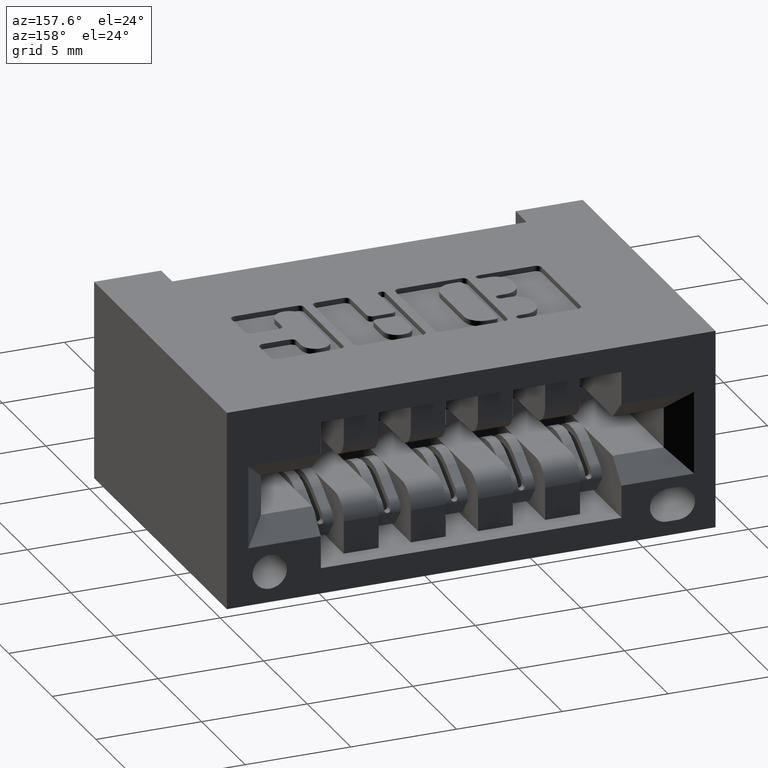
[diagram: clean part render]
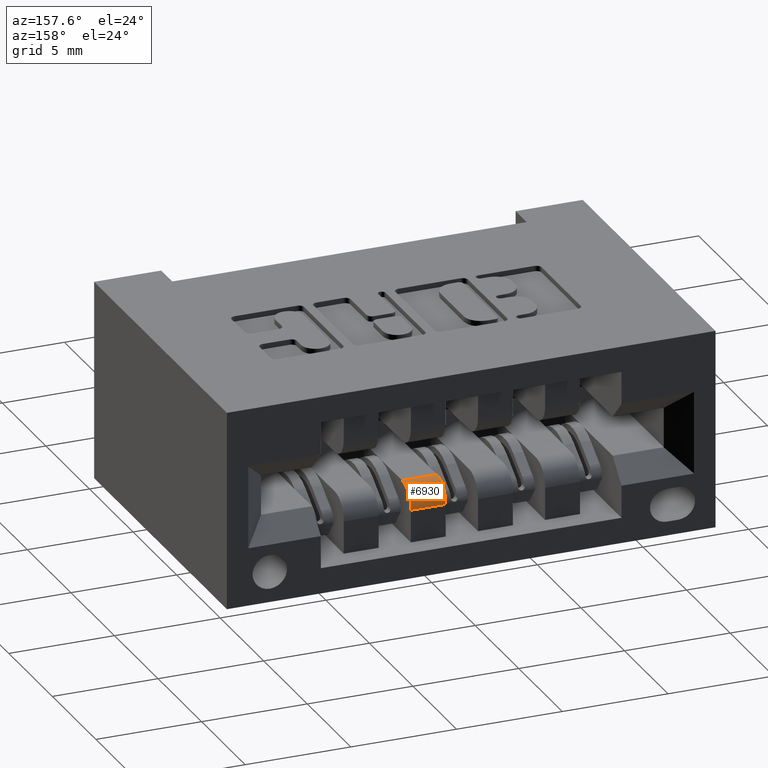
[diagram: same view with one face highlighted and labeled with its STEP entity id]
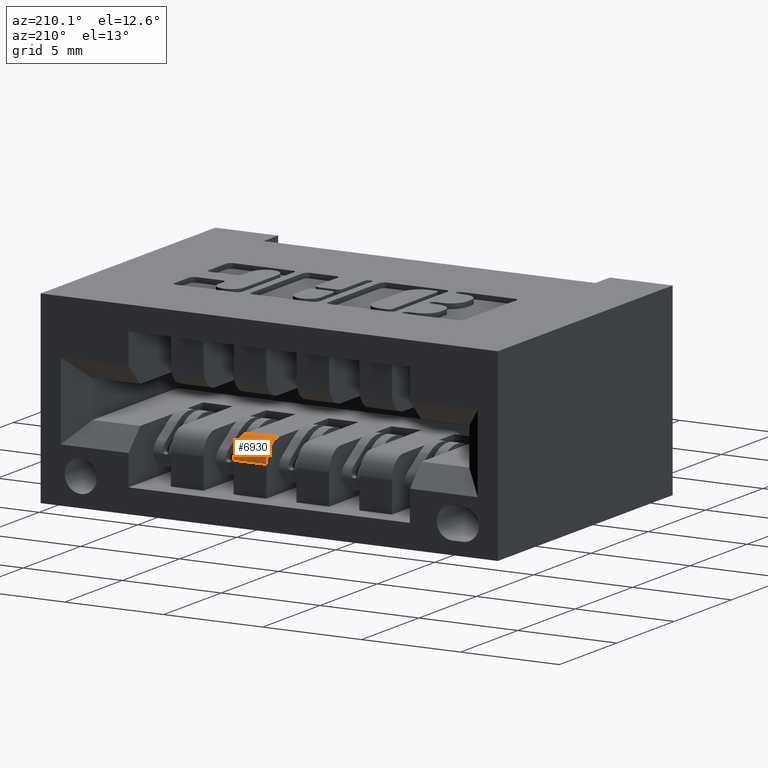
[diagram: same view with one face highlighted and labeled with its STEP entity id]
A machine part, auxiliary view. The second image highlights one B-rep face of the part: STEP entity #6930.
A second angle (auxiliary view) of the same face is appended — the face is thin or edge-on in the first view.
In plain terms, the highlighted cylindrical surface (edge-blend (fillet) strip) has radius 1.016 mm, axis along (-1, -0, -0).
Its self-contained STEP definition (entity closure, byte-faithful):
#284 = AXIS2_PLACEMENT_3D ( 'NONE', #1608, #5769, #6524 ) ;
#611 = CARTESIAN_POINT ( 'NONE',  ( 0.8125000000000000000, 0.5179999999999996829, -0.2220000000000000584 ) ) ;
#838 = VERTEX_POINT ( 'NONE', #5212 ) ;
#897 = DIRECTION ( 'NONE',  ( 0.0000000000000000000, 0.0000000000000000000, 1.000000000000000000 ) ) ;
#1227 = ORIENTED_EDGE ( 'NONE', *, *, #4179, .T. ) ;
#1487 = FACE_OUTER_BOUND ( 'NONE', #6674, .T. ) ;
#1608 = CARTESIAN_POINT ( 'NONE',  ( 0.8125000000000000000, 0.5180000000000000160, -0.2620000000000000107 ) ) ;
#1797 = VERTEX_POINT ( 'NONE', #2021 ) ;
#2021 = CARTESIAN_POINT ( 'NONE',  ( 0.7475000000000000533, 0.5179999999999996829, -0.2220000000000000584 ) ) ;
#2149 = DIRECTION ( 'NONE',  ( 0.0000000000000000000, 0.0000000000000000000, 1.000000000000000000 ) ) ;
#2646 = CARTESIAN_POINT ( 'NONE',  ( 0.8125000000000000000, 0.5179999999999996829, -0.2220000000000000584 ) ) ;
#2673 = VECTOR ( 'NONE', #3071, 39.37007874015748143 ) ;
#2727 = CIRCLE ( 'NONE', #284, 0.03999999999999998002 ) ;
#2798 = ORIENTED_EDGE ( 'NONE', *, *, #6284, .F. ) ;
#3071 = DIRECTION ( 'NONE',  ( -1.000000000000000000, -0.0000000000000000000, -0.0000000000000000000 ) ) ;
#3293 = CARTESIAN_POINT ( 'NONE',  ( 0.7475000000000000533, 0.5579999999999999405, -0.2620000000000003437 ) ) ;
#3329 = DIRECTION ( 'NONE',  ( 1.000000000000000000, -0.0000000000000000000, -0.0000000000000000000 ) ) ;
#3647 = CARTESIAN_POINT ( 'NONE',  ( 0.8125000000000000000, 0.5579999999999999405, -0.2620000000000003437 ) ) ;
#3924 = ORIENTED_EDGE ( 'NONE', *, *, #6205, .T. ) ;
#4081 = CYLINDRICAL_SURFACE ( 'NONE', #6655, 0.03999999999999998002 ) ;
#4129 = LINE ( 'NONE', #3647, #4884 ) ;
#4179 = EDGE_CURVE ( 'NONE', #838, #5855, #4129, .T. ) ;
#4254 = EDGE_CURVE ( 'NONE', #838, #5566, #2727, .T. ) ;
#4321 = LINE ( 'NONE', #611, #2673 ) ;
#4444 = CARTESIAN_POINT ( 'NONE',  ( 0.7475000000000000533, 0.5180000000000000160, -0.2620000000000000107 ) ) ;
#4884 = VECTOR ( 'NONE', #6572, 39.37007874015748143 ) ;
#4941 = ORIENTED_EDGE ( 'NONE', *, *, #4254, .F. ) ;
#5212 = CARTESIAN_POINT ( 'NONE',  ( 0.8125000000000000000, 0.5579999999999999405, -0.2620000000000003437 ) ) ;
#5566 = VERTEX_POINT ( 'NONE', #2646 ) ;
#5618 = AXIS2_PLACEMENT_3D ( 'NONE', #4444, #3329, #2149 ) ;
#5769 = DIRECTION ( 'NONE',  ( 1.000000000000000000, -0.0000000000000000000, -0.0000000000000000000 ) ) ;
#5855 = VERTEX_POINT ( 'NONE', #3293 ) ;
#6205 = EDGE_CURVE ( 'NONE', #5855, #1797, #7272, .T. ) ;
#6284 = EDGE_CURVE ( 'NONE', #5566, #1797, #4321, .T. ) ;
#6524 = DIRECTION ( 'NONE',  ( 0.0000000000000000000, 0.0000000000000000000, 1.000000000000000000 ) ) ;
#6572 = DIRECTION ( 'NONE',  ( -1.000000000000000000, -0.0000000000000000000, -0.0000000000000000000 ) ) ;
#6655 = AXIS2_PLACEMENT_3D ( 'NONE', #7156, #7127, #897 ) ;
#6674 = EDGE_LOOP ( 'NONE', ( #3924, #2798, #4941, #1227 ) ) ;
#6930 = ADVANCED_FACE ( 'NONE', ( #1487 ), #4081, .T. ) ;
#7127 = DIRECTION ( 'NONE',  ( -1.000000000000000000, -0.0000000000000000000, -0.0000000000000000000 ) ) ;
#7156 = CARTESIAN_POINT ( 'NONE',  ( 0.8125000000000000000, 0.5180000000000000160, -0.2620000000000000107 ) ) ;
#7272 = CIRCLE ( 'NONE', #5618, 0.03999999999999998002 ) ;